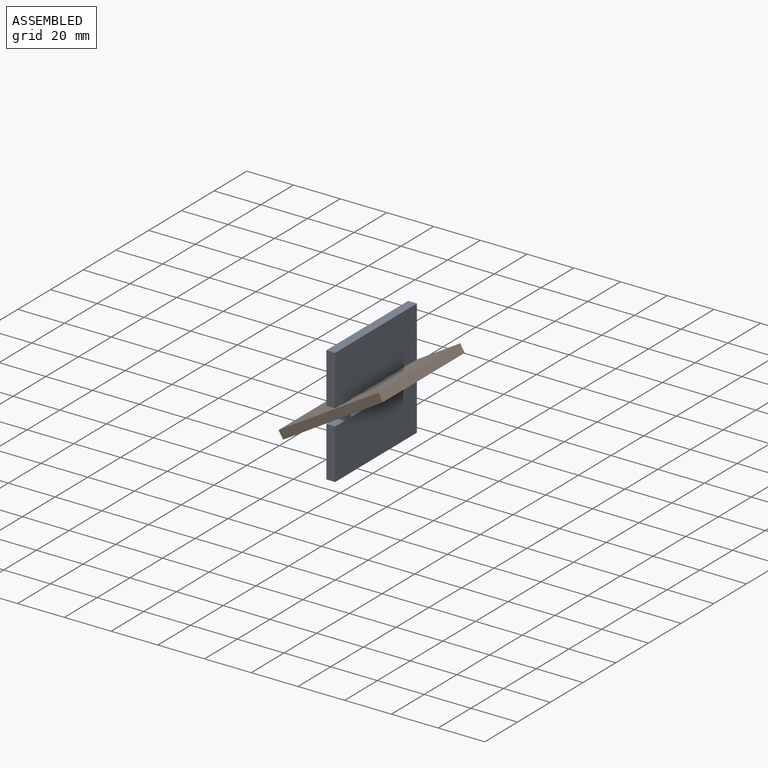
[diagram: assembled view]
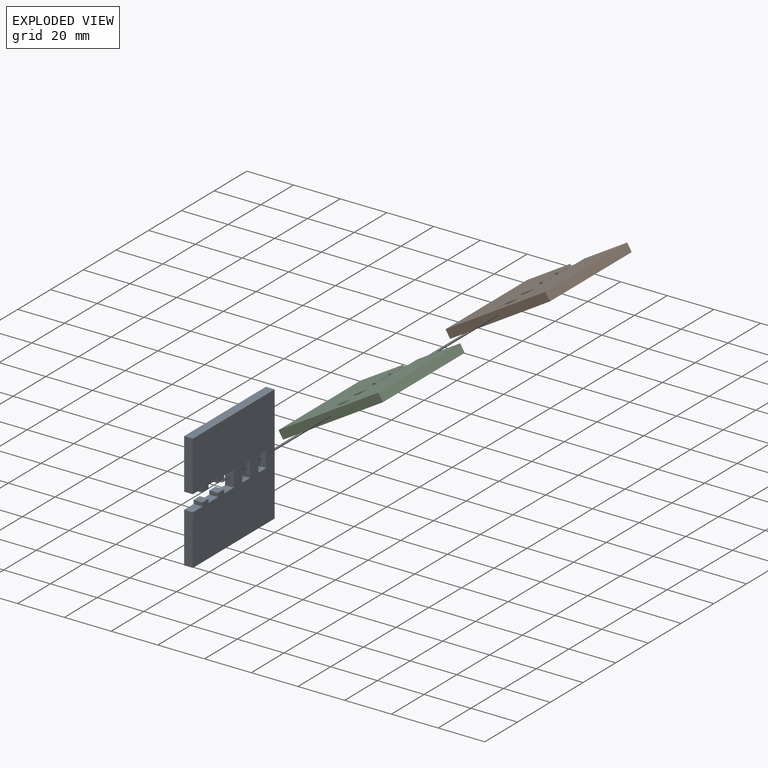
[diagram: exploded view]
GUIDED TOUR — MATED ASSEMBLY (Onshape document 498083ab9e89936b84a1f952, AutoMate assembly 498083ab9e89936b84a1f952_8f5092d80cb9541d45d1987b_18d3b0d6fe0b608ed7573b87_default)

This assembly has 3 components, labeled P0..P2 below (a component is one placed occurrence of a part; the same part can appear more than once), held together by 2 mates. A mate is a constraint between two components; its type names the relative motion it leaves free:
  FASTENED — locks the two components together rigidly (no relative motion),
  REVOLUTE — leaves rotation about the listed axis free (a hinge).
Axis/direction vectors are unit vectors and 'through' points are millimeter coordinates, both in the assembly's world frame.

MATES
  1. FASTENED "Fastened 1": P2 <-> P1, direction (0.000, 1.000, 0.000) through (-6.95, -10.76, -10.11) mm
  2. REVOLUTE "Revolute 1": P0 <-> P2, axis (0.000, -1.000, 0.000) through (-6.95, -10.76, -10.11) mm

ASSEMBLY ORDER
  1. P2 — the base component [order heuristic]
  2. P1 — core [order heuristic]
  3. P0 [order verified]
Order-tag legend:
  [order verified] — this step's position reverses a verified removal order: the component was checked to insert without passing through the ones already placed.
  [order heuristic] — the first 2 components form the assembly's core: parts whose collision-free extraction could not be verified, listed in mate-graph order.

Of the 3 components, 3 carry the full construction recipe — the FeatureScript program that regenerates the part's solid from scratch; the rest are supplied as boundary geometry only.
Each toured component is shown spotlighted twice — in the assembled view, then in the exploded view, where a leader line traces a displaced component back to its assembled socket (saturated green if recipe-attached, orange if geometry-only; every other component desaturated gray) — followed by its recipe or geometry summary and the mates that hold it.
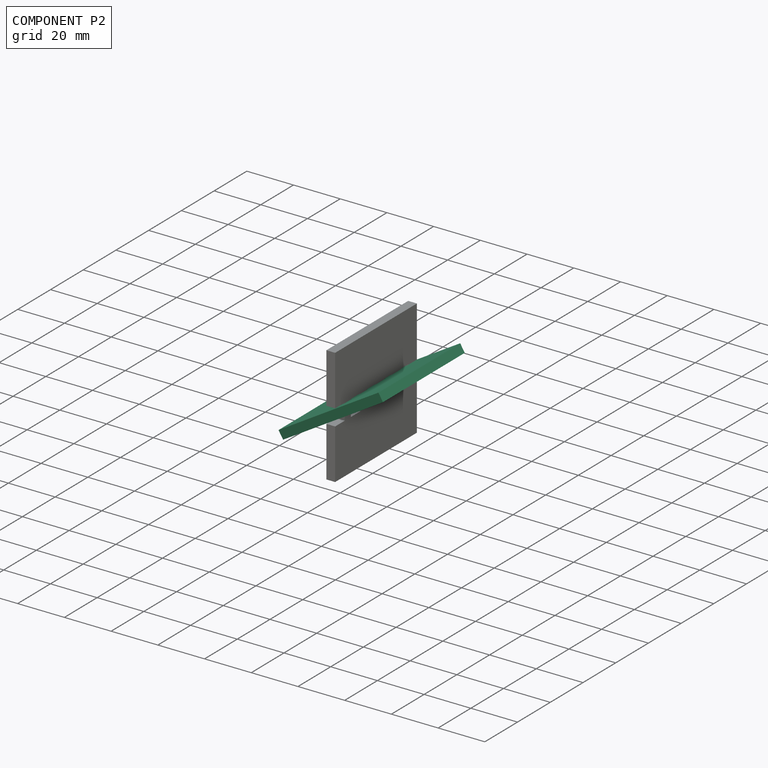
[diagram: component P2 — assembled]
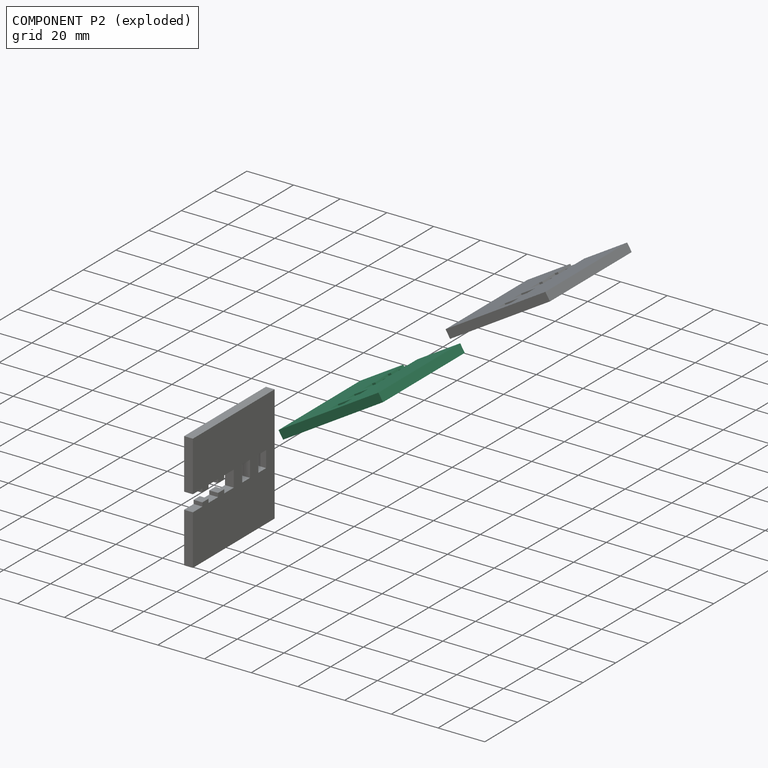
[diagram: component P2 — exploded]
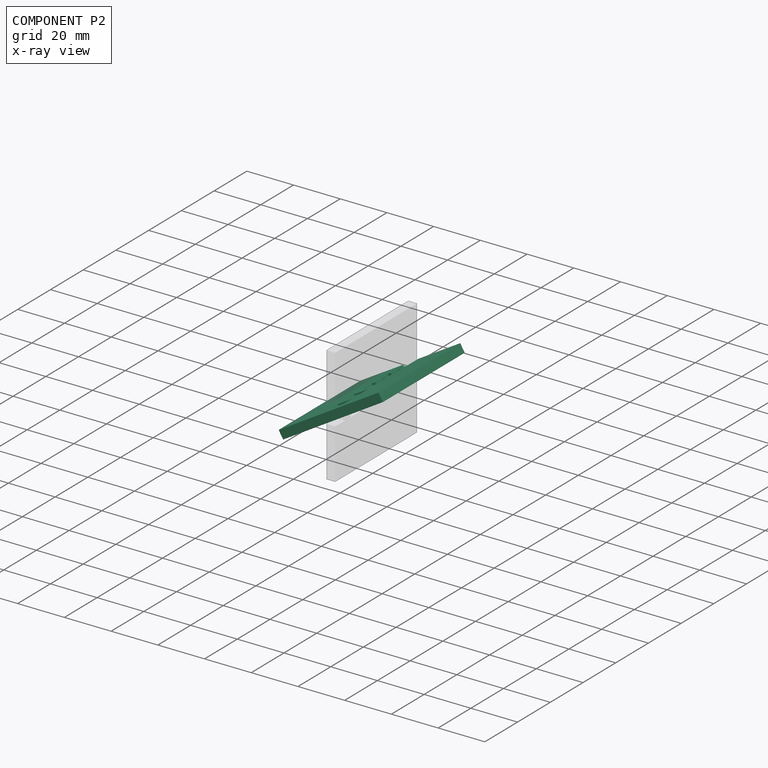
[diagram: component P2 — x-ray view]
COMPONENT P2 — same part as P0 (CADFS 00414122); its construction recipe is shown at P0.
Held by: FASTENED mate "Fastened 1" to P1; REVOLUTE mate "Revolute 1" to P0.
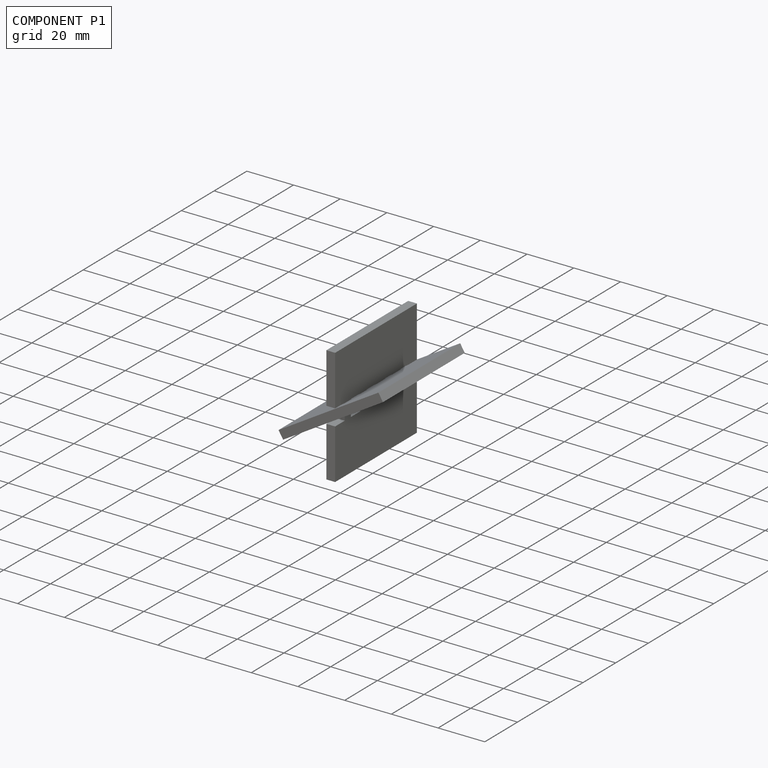
[diagram: component P1 — assembled]
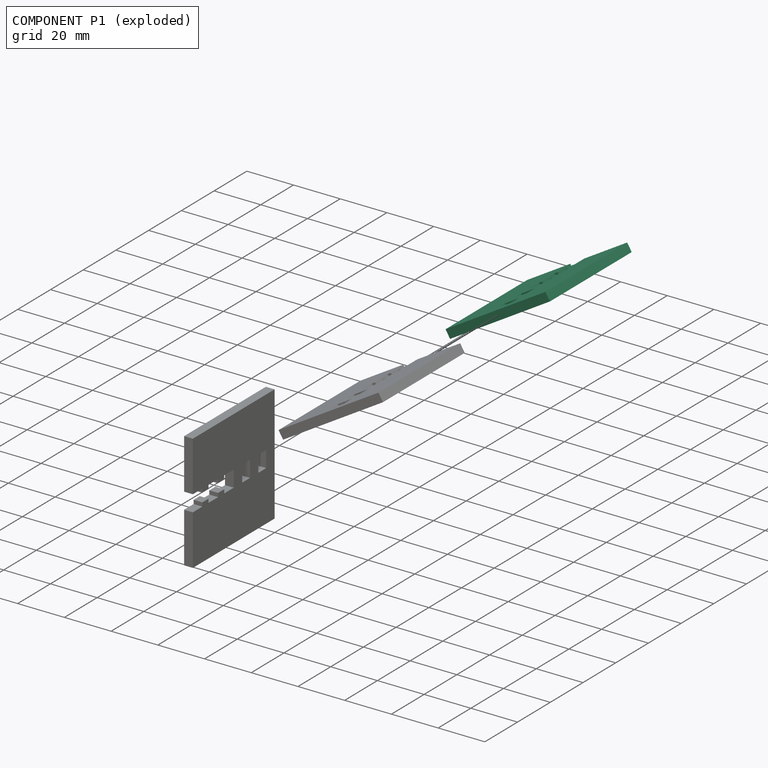
[diagram: component P1 — exploded]
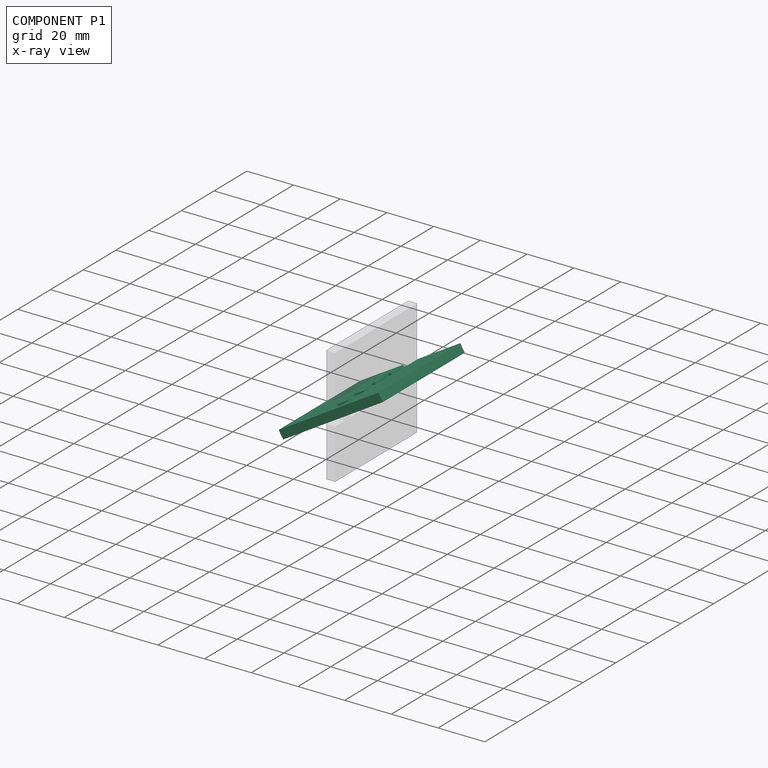
[diagram: component P1 — x-ray view]
COMPONENT P1 — same part as P0 (CADFS 00414122); its construction recipe is shown at P0.
Held by: FASTENED mate "Fastened 1" to P2.
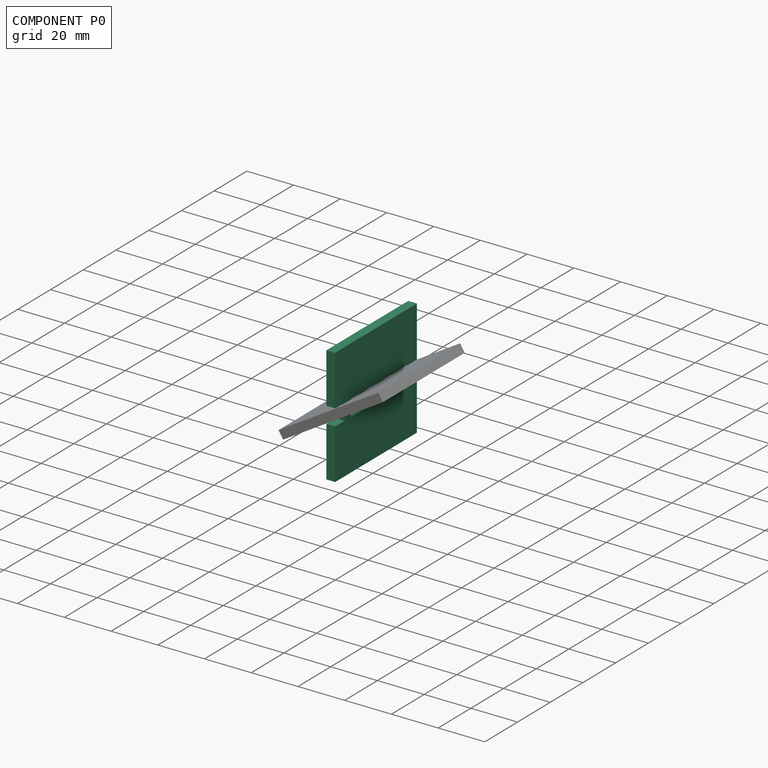
[diagram: component P0 — assembled]
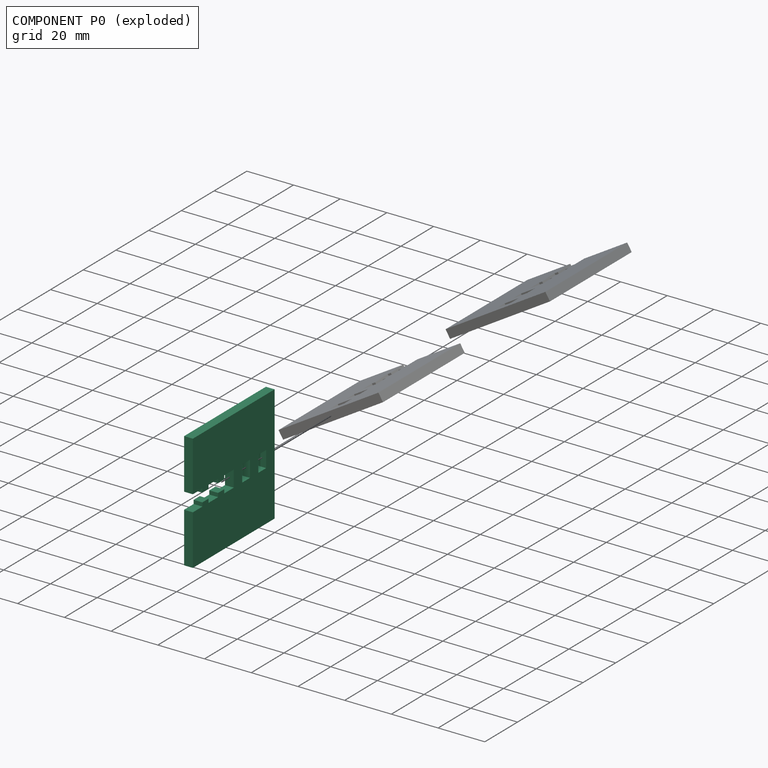
[diagram: component P0 — exploded]
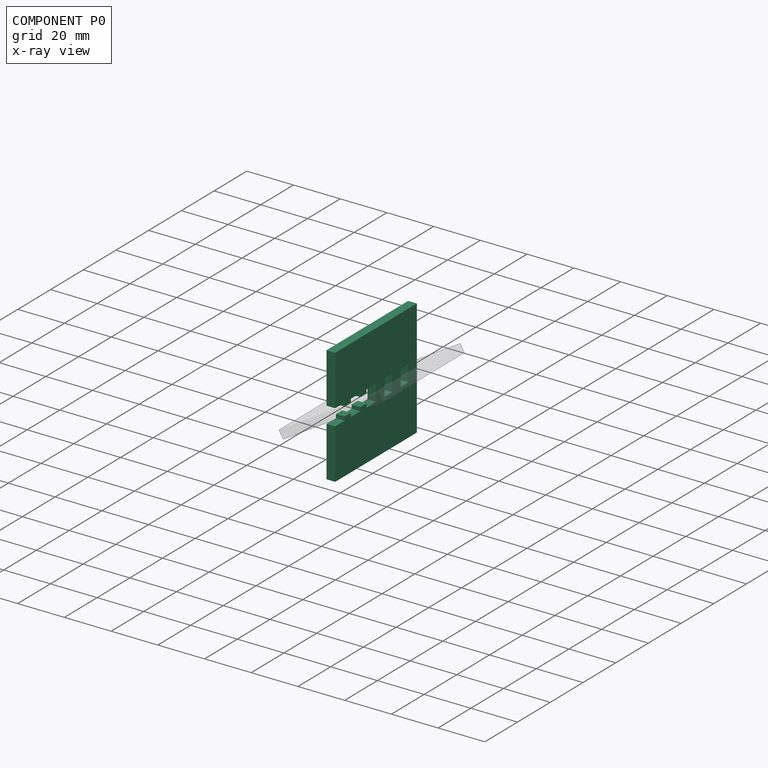
[diagram: component P0 — x-ray view]
COMPONENT P0 — recipe-attached (CADFS 00414122, mesh-verified: the recipe's output STEP matches this component's geometry to below the mesh-comparison resolution (tessellation chordal tolerance ~0.106 mm)).
Held by: REVOLUTE mate "Revolute 1" to P2.
Construction recipe (FeatureScript — the CAD program that rebuilds this solid; sketch coordinates are in the units given by the * unit suffixes, e.g. mm):

FeatureScript 1511;
import(path : "onshape/std/geometry.fs", version : "1511.0");
import(path : "onshape/std/common.fs", version : "1511.0");
const mm = millimeter;
const VERTEX = EntityType.VERTEX;
const EDGE = EntityType.EDGE;
const FACE = EntityType.FACE;
const BODY = EntityType.BODY;
function v(x, y){return vector(x, y);}
function OD(order){return orderDisambiguation(order);}
function OSD(set){return originalSetDisambiguation(set);}
function TD(topology){return topologyDisambiguation(topology);}
function TDD(query){return trueDependencyDisambiguation(query);}
function sQuery(a, b, c) {return sketchEntityQuery(a, b, c);}

annotation { "Feature Type Name" : "Feature", "Feature Type Description" : "" }
export const myFeature = defineFeature(function(context is Context, id is Id, definition is map)
    precondition{}
    {
        {
            assignVariable(context, id + "F0", {"name" : "material_thickness", "anyValue" : 3.75});
        }
        {
            var Q0;
            Q0=qCreatedBy(makeId("Top.planeOp"),FACE);
            var sketch = newSketch(context, id + "F1", { "sketchPlane" : qUnion([Q0])});
            skLineSegment(sketch, "E0.bottom", {"start": v(25, -25) * mm, "end": v(-25, -25) * mm});
            skLineSegment(sketch, "E0.top", {"start": v(25, 25) * mm, "end": v(3.5, 25) * mm});
            skLineSegment(sketch, "E0.left", {"start": v(25, -25) * mm, "end": v(25, 25) * mm});
            skLineSegment(sketch, "E0.right", {"start": v(-25, -25) * mm, "end": v(-25, 25) * mm});
            skPoint(sketch, "E0.middle", {"position": v(0, 0) * mm});
            skLineSegment(sketch, "E1", {"start": v(-3.5, 25) * mm, "end": v(-3.5, 19.17) * mm});
            skLineSegment(sketch, "E2", {"start": v(-3.5, 0) * mm, "end": v(3.5, 0) * mm});
            skLineSegment(sketch, "E3", {"start": v(3.5, 0) * mm, "end": v(3.5, 25) * mm});
            skLineSegment(sketch, "E4.trimOffspring", {"start": v(-3.5, 25) * mm, "end": v(-25, 25) * mm});
            skLineSegment(sketch, "E5", {"start": v(-3.5, 5.83) * mm, "end": v(-1.88, 5.83) * mm});
            skLineSegment(sketch, "E6", {"start": v(-1.88, 5.83) * mm, "end": v(-1.88, 9.58) * mm});
            skLineSegment(sketch, "E7", {"start": v(-1.88, 9.58) * mm, "end": v(-3.5, 9.58) * mm});
            skLineSegment(sketch, "E8.trimOffspring", {"start": v(-3.5, 5.83) * mm, "end": v(-3.5, 0) * mm});
            skLineSegment(sketch, "E9", {"start": v(-3.5, 15.42) * mm, "end": v(-1.88, 15.42) * mm});
            skLineSegment(sketch, "E10", {"start": v(-1.88, 15.42) * mm, "end": v(-1.88, 19.17) * mm});
            skLineSegment(sketch, "E11", {"start": v(-1.88, 19.17) * mm, "end": v(-3.5, 19.17) * mm});
            skLineSegment(sketch, "E12.trimOffspring", {"start": v(-3.5, 15.42) * mm, "end": v(-3.5, 9.58) * mm});
            skLineSegment(sketch, "E13", {"start": v(0, 0) * mm, "end": v(0, 25) * mm, "construction": true});
            skLineSegment(sketch, "E14", {"start": v(0, 0) * mm, "end": v(0, -25) * mm});
            skSolve(sketch);
        }
        {
            var Q0;
            {var subQ1=sQuery(id+"F1.wireOp",EDGE,"E0.right");Q0=makeQuery(id+"F1.imprint","IMPRINT",FACE,{"disambiguationData":[TD([[makeQuery(id+"F1.imprint","IMPRINT",EDGE,{"derivedFrom":subQ1}),-1.0]])]});}
            extrude(context, id + "F2", {"entities" : qUnion([Q0]), "endBound" : BoundingType.SYMMETRIC, "depth" : (getVariable(context, 'material_thickness')) * mm});
        }
        {
            var Q0;
            Q0=makeQuery(id+"F2.opExtrude","SWEPT_BODY",BODY,{"disambiguationData":[OSD([sQuery(id+"F1.wireOp",EDGE,"E0.bottom"),sQuery(id+"F1.wireOp",EDGE,"E0.right"),sQuery(id+"F1.wireOp",EDGE,"E1"),sQuery(id+"F1.wireOp",EDGE,"E2"),sQuery(id+"F1.wireOp",EDGE,"E4.trimOffspring"),sQuery(id+"F1.wireOp",EDGE,"E5"),sQuery(id+"F1.wireOp",EDGE,"E6"),sQuery(id+"F1.wireOp",EDGE,"E7"),sQuery(id+"F1.wireOp",EDGE,"E8.trimOffspring"),sQuery(id+"F1.wireOp",EDGE,"E9"),sQuery(id+"F1.wireOp",EDGE,"E10"),sQuery(id+"F1.wireOp",EDGE,"E11"),sQuery(id+"F1.wireOp",EDGE,"E12.trimOffspring"),sQuery(id+"F1.wireOp",EDGE,"E14")])]});
            var Q1;
            Q1=makeQuery(id+"F2.opExtrude","SWEPT_FACE",FACE,{"disambiguationData":[OSD([sQuery(id+"F1.wireOp",EDGE,"E14")])]});
            mirror(context, id + "F3", {"operationType" : NewBodyOperationType.ADD, "entities" : qUnion([Q0]), "mirrorPlane" : qUnion([Q1])});
        }
        {
            var Q0;
            {var subQ0=makeQuery(id+"F2.opExtrude","CAP_FACE",FACE,{"disambiguationData":[OSD([sQuery(id+"F1.wireOp",EDGE,"E0.bottom"),sQuery(id+"F1.wireOp",EDGE,"E0.right"),sQuery(id+"F1.wireOp",EDGE,"E1"),sQuery(id+"F1.wireOp",EDGE,"E2"),sQuery(id+"F1.wireOp",EDGE,"E4.trimOffspring"),sQuery(id+"F1.wireOp",EDGE,"E5"),sQuery(id+"F1.wireOp",EDGE,"E6"),sQuery(id+"F1.wireOp",EDGE,"E7"),sQuery(id+"F1.wireOp",EDGE,"E8.trimOffspring"),sQuery(id+"F1.wireOp",EDGE,"E9"),sQuery(id+"F1.wireOp",EDGE,"E10"),sQuery(id+"F1.wireOp",EDGE,"E11"),sQuery(id+"F1.wireOp",EDGE,"E12.trimOffspring"),sQuery(id+"F1.wireOp",EDGE,"E14")])],"isStart":false});Q0=makeQuery(id+"F3.boolean.opBoolean","MERGE",FACE,{"derivedFrom":[subQ0,makeQuery(id+"F3.opPattern","COPY",FACE,{"derivedFrom":subQ0,"instanceName":"1"})]});}
            var sketch = newSketch(context, id + "F4", { "sketchPlane" : qUnion([Q0])});
            skLineSegment(sketch, "E15", {"start": v(0, 0) * mm, "end": v(0, -25) * mm, "construction": true});
            skLineSegment(sketch, "E16.bottom", {"start": v(3.5, -5.17) * mm, "end": v(-3.5, -5.17) * mm});
            skLineSegment(sketch, "E16.top", {"start": v(3.5, -9.92) * mm, "end": v(-3.5, -9.92) * mm});
            skLineSegment(sketch, "E16.left", {"start": v(3.5, -5.17) * mm, "end": v(3.5, -9.92) * mm});
            skLineSegment(sketch, "E16.right", {"start": v(-3.5, -5.17) * mm, "end": v(-3.5, -9.92) * mm});
            skPoint(sketch, "E16.middle", {"position": v(0, -7.54) * mm});
            skLineSegment(sketch, "E17.bottom", {"start": v(3.5, -15.08) * mm, "end": v(-3.5, -15.08) * mm});
            skLineSegment(sketch, "E17.top", {"start": v(3.5, -19.83) * mm, "end": v(-3.5, -19.83) * mm});
            skLineSegment(sketch, "E17.left", {"start": v(3.5, -15.08) * mm, "end": v(3.5, -19.83) * mm});
            skLineSegment(sketch, "E17.right", {"start": v(-3.5, -15.08) * mm, "end": v(-3.5, -19.83) * mm});
            skPoint(sketch, "E17.middle", {"position": v(0, -17.46) * mm});
            skLineSegment(sketch, "E18", {"start": v(-3.5, -5.17) * mm, "end": v(-3.5, 0) * mm, "construction": true});
            skLineSegment(sketch, "E19", {"start": v(-3.5, -9.92) * mm, "end": v(-3.5, -15.08) * mm, "construction": true});
            skLineSegment(sketch, "E20.0", {"start": v(-1.88, 5.83) * mm, "end": v(-1.88, 9.58) * mm, "construction": true});
            skLineSegment(sketch, "E21.0", {"start": v(-3.5, 15.42) * mm, "end": v(-3.5, 9.58) * mm, "construction": true});
            skLineSegment(sketch, "E22", {"start": v(-3.5, -19.83) * mm, "end": v(-3.5, -25) * mm, "construction": true});
            skSolve(sketch);
        }
        {
            var Q0;
            Q0=makeQuery(id+"F4.imprint","IMPRINT",FACE,{"disambiguationData":[TD([[makeQuery(id+"F4.imprint","IMPRINT",EDGE,{"derivedFrom":sQuery(id+"F4.wireOp",EDGE,"E16.bottom")}),1.0]])]});
            var Q1;
            Q1=makeQuery(id+"F4.imprint","IMPRINT",FACE,{"disambiguationData":[TD([[makeQuery(id+"F4.imprint","IMPRINT",EDGE,{"derivedFrom":sQuery(id+"F4.wireOp",EDGE,"E17.bottom")}),1.0]])]});
            extrude(context, id + "F5", {"entities" : qUnion([Q0, Q1]), "operationType" : NewBodyOperationType.REMOVE, "oppositeDirection" : true, "depth" : 25 * mm});
        }
    });
PROVENANCE & LICENSES
Assembly (occurrences, transforms, mates, per-part STEP geometry): AutoMate dataset, Zenodo record 7776208, CC0.
Construction recipes: CADFS (HuggingFace VladPyatov/CADFS, CC-BY-4.0, layered over the ABC dataset), FeatureScript reconstruction programs keyed by ABC model id.
Join: ABC meta listings map ABC model id -> Onshape documentId; within a shared document, parts are matched by geometric signature (bounding-box dims + volume at 0.1% relative tolerance, exact B-rep face/solid counts).
Verification: 3 of this assembly's 3 components carry a recipe attachment, and every attachment is mesh-verified: the CADFS STEP and the AutoMate member STEP were compared as meshes in their shared local frame (symmetric sampled-point-to-mesh distance); worst across the 3 attachments: below the mesh-comparison resolution (tessellation chordal tolerance ~0.106 mm) on a 71 mm part.
Renders: orthographic iso camera (az 35 / el 25); the floor grid conveys scale (grid pitch printed in each image; no ruler). In the exploded view each component is displaced by its stored offset vector: the offsets alone carry the explosion direction (mate normal/axis signs are not orientation cues and do not encode it), and separation distances are assigned per mate-chain, not proportionally to assembly-order depth.
